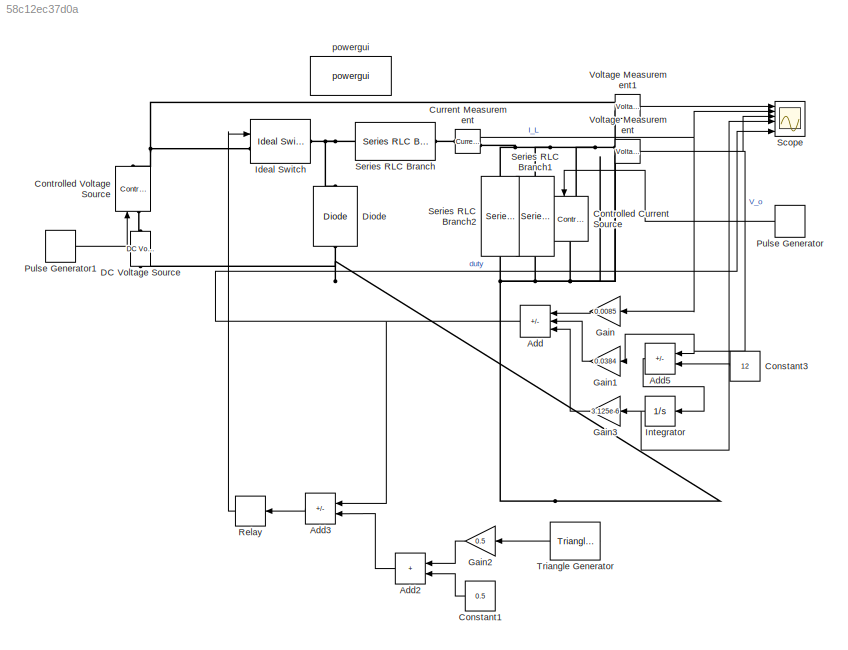
MODEL slx_58c12ec37d0a
KIND model
CONFIG AbsTol = auto
CONFIG EnableMultiTasking = off
CONFIG FixedStep = auto
CONFIG MaxStep = auto
CONFIG MinStep = auto
CONFIG RelTol = 1e-3
CONFIG SampleTimeConstraint = Unconstrained
CONFIG Solver = VariableStepAuto
CONFIG SolverName = VariableStepAuto
CONFIG StartTime = 0.0
CONFIG StopTime = 0.1
BLOCK [Sum] Add
  IconShape = rectangular
  Inputs = --+
  Ports = [3, 1]
BLOCK [Sum] Add2
  IconShape = rectangular
  Ports = [2, 1]
BLOCK [Sum] Add3
  IconShape = rectangular
  Inputs = +-
  Ports = [2, 1]
BLOCK [Sum] Add5
  IconShape = rectangular
  Inputs = -+
  Ports = [2, 1]
BLOCK [Constant] Constant1
  Value = 0.5
BLOCK [Constant] Constant3
  Value = 12
BLOCK [Reference] Controlled Current Source  REF=powerlib/Electrical
Sources/Controlled Current Source
  NameLocation = right
  Ports = [1, 0, 0, 0, 0, 1, 1]
  SourceBlock = powerlib/Electrical\nSources/Controlled Current Source
  SourceProductBaseCode = PS
  SourceType = Controlled Current Source
BLOCK [Reference] Controlled Voltage Source  REF=powerlib/Electrical
Sources/Controlled Voltage Source
  NameLocation = right
  Ports = [1, 0, 0, 0, 0, 1, 1]
  SourceBlock = powerlib/Electrical\nSources/Controlled Voltage Source
  SourceProductBaseCode = PS
  SourceType = Controlled Voltage Source
BLOCK [Reference] Current Measurement  REF=powerlib/Measurements/Current Measurement
  Ports = [0, 1, 0, 0, 0, 1, 1]
  SourceBlock = powerlib/Measurements/Current Measurement
  SourceProductBaseCode = PS
  SourceType = Current Measurement
  UserDataPersistent = on
BLOCK [Reference] DC Voltage Source  REF=powerlib/Electrical
Sources/DC Voltage Source
  NameLocation = right
  Ports = [0, 0, 0, 0, 0, 1, 1]
  SourceBlock = powerlib/Electrical\nSources/DC Voltage Source
  SourceProductBaseCode = PS
  SourceType = DC Voltage Source
BLOCK [Reference] Diode  REF=powerlib/Power
Electronics/Diode
  NameLocation = right
  Ports = [0, 0, 0, 0, 0, 1, 1]
  SourceBlock = powerlib/Power\nElectronics/Diode
  SourceProductBaseCode = PS
  SourceType = Diode
BLOCK [Gain] Gain
  Gain = 0.0085
BLOCK [Gain] Gain1
  Gain = 0.0384
BLOCK [Gain] Gain2
  Gain = 0.5
BLOCK [Gain] Gain3
  Gain = 3.125e-6
BLOCK [Reference] Ideal Switch  REF=powerlib/Power
Electronics/Ideal Switch
  Ports = [1, 0, 0, 0, 0, 1, 1]
  SourceBlock = powerlib/Power\nElectronics/Ideal Switch
  SourceProductBaseCode = PS
  SourceType = Ideal Switch
BLOCK [Integrator] Integrator
  Ports = [1, 1]
BLOCK [DiscretePulseGenerator] Pulse Generator
  Amplitude = 5
  Period = 0.04
  PhaseDelay = 0.05
  Ports = [0, 1]
  PulseType = Time based
  PulseWidth = 50
BLOCK [DiscretePulseGenerator] Pulse Generator1
  Amplitude = 5
  Period = 0.04
  PhaseDelay = 0.04
  Ports = [0, 1]
  PulseType = Time based
  PulseWidth = 50
BLOCK [Relay] Relay
BLOCK [Scope] Scope
  Floating = off
  NumInputPorts = 6
  Ports = [6]
  ScopeSpecificationString = Simulink.scopes.TimeScopeBlockCfg('CurrentConfiguration', extmgr.ConfigurationSet(extmgr.Configuration('Core','General UI',true),extmgr.Configuration('Core','Source UI',true),extmgr.Configuration('Sources','WiredSimulink',true),extmgr.Configuration('Visuals','Time Domain',true,'SerializedDisplays',{struct('MinYLimReal','21.375','MaxYLimReal','27.625','YLabelReal','','MinYLimMag','21.375','MaxYLimM...<+4937ch>
BLOCK [Reference] Series RLC Branch  REF=powerlib/Elements/Series RLC Branch
  Ports = [0, 0, 0, 0, 0, 1, 1]
  SourceBlock = powerlib/Elements/Series RLC Branch
  SourceProductBaseCode = PS
  SourceType = Series RLC Branch
BLOCK [Reference] Series RLC Branch1  REF=powerlib/Elements/Series RLC Branch
  NameLocation = left
  Ports = [0, 0, 0, 0, 0, 1, 1]
  SourceBlock = powerlib/Elements/Series RLC Branch
  SourceProductBaseCode = PS
  SourceType = Series RLC Branch
BLOCK [Reference] Series RLC Branch2  REF=powerlib/Elements/Series RLC Branch
  NameLocation = left
  Ports = [0, 0, 0, 0, 0, 1, 1]
  SourceBlock = powerlib/Elements/Series RLC Branch
  SourceProductBaseCode = PS
  SourceType = Series RLC Branch
BLOCK [Reference] Triangle Generator  REF=powerlib_meascontrol/Pulse & Signal
Generators/Triangle
Generator
  Ports = [0, 1]
  SourceBlock = powerlib_meascontrol/Pulse & Signal\nGenerators/Triangle\nGenerator
  SourceProductBaseCode = PS
  SourceType = Triangle Generator
BLOCK [Reference] Voltage Measurement  REF=powerlib/Measurements/Voltage Measurement
  Ports = [0, 1, 0, 0, 0, 2]
  SourceBlock = powerlib/Measurements/Voltage Measurement
  SourceProductBaseCode = PS
  SourceType = Voltage Measurement
  UserDataPersistent = on
BLOCK [Reference] Voltage Measurement1  REF=powerlib/Measurements/Voltage Measurement
  Ports = [0, 1, 0, 0, 0, 2]
  SourceBlock = powerlib/Measurements/Voltage Measurement
  SourceProductBaseCode = PS
  SourceType = Voltage Measurement
  UserDataPersistent = on
BLOCK [Reference] powergui  REF=powerlib/powergui
  Ports = []
  Priority = 1
  SourceBlock = powerlib/powergui
  SourceProductBaseCode = PS
  SourceType = PSB option menu block
LINE Add2:1 -> Add3:2
LINE Add3:1 -> Relay:1
LINE Add5:1 -> Integrator:1
NET Add:1 -> Add3:1, Scope:6
LINE Constant1:1 -> Add2:2
LINE Constant3:1 -> Add5:2
NET Current Measurement:1 -> Gain:1, Scope:2
LINE Gain1:1 -> Add:2
LINE Gain2:1 -> Add2:1
LINE Gain3:1 -> Add:3
LINE Gain:1 -> Add:1
NET Integrator:1 -> Gain3:1, Scope:4
LINE Pulse Generator1:1 -> Controlled Voltage Source:1
LINE Pulse Generator:1 -> Controlled Current Source:1
LINE Relay:1 -> Ideal Switch:1
LINE Triangle Generator:1 -> Gain2:1
LINE Voltage Measurement1:1 -> Scope:1
NET Voltage Measurement:1 -> Add5:1, Gain1:1, Scope:3
PNET net1: Controlled Current Source:LConn1 -- Current Measurement:RConn1 -- Series RLC Branch1:LConn1 -- Series RLC Branch2:LConn1 -- Voltage Measurement:LConn1
PNET net2: Controlled Current Source:RConn1 -- DC Voltage Source:LConn1 -- Diode:LConn1 -- Series RLC Branch1:RConn1 -- Series RLC Branch2:RConn1 -- Voltage Measurement1:LConn2 -- Voltage Measurement:LConn2
PLINE Controlled Voltage Source:LConn1 -- DC Voltage Source:RConn1
PNET net3: Controlled Voltage Source:RConn1 -- Ideal Switch:LConn1 -- Voltage Measurement1:LConn1
PLINE Current Measurement:LConn1 -- Series RLC Branch:RConn1
PNET net4: Diode:RConn1 -- Ideal Switch:RConn1 -- Series RLC Branch:LConn1
note: NET lines group one-source signal fan-out (src -> all destinations, sorted); 1:1 wires keep LINE; PNET lines group multi-terminal physical nets as a canonical sorted terminal list (undirected conserving connections); 2-terminal nets keep the pairwise PLINE form
